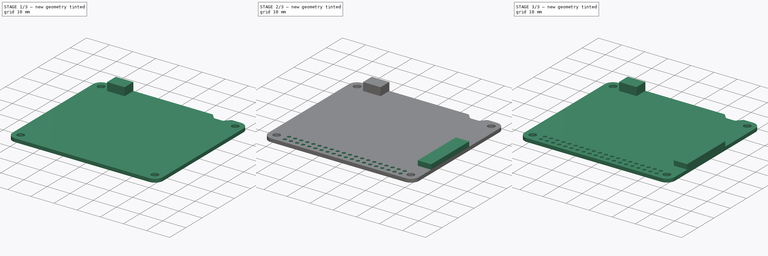
[diagram: build sequence overview — one tinted view per stage of 3, left to right]
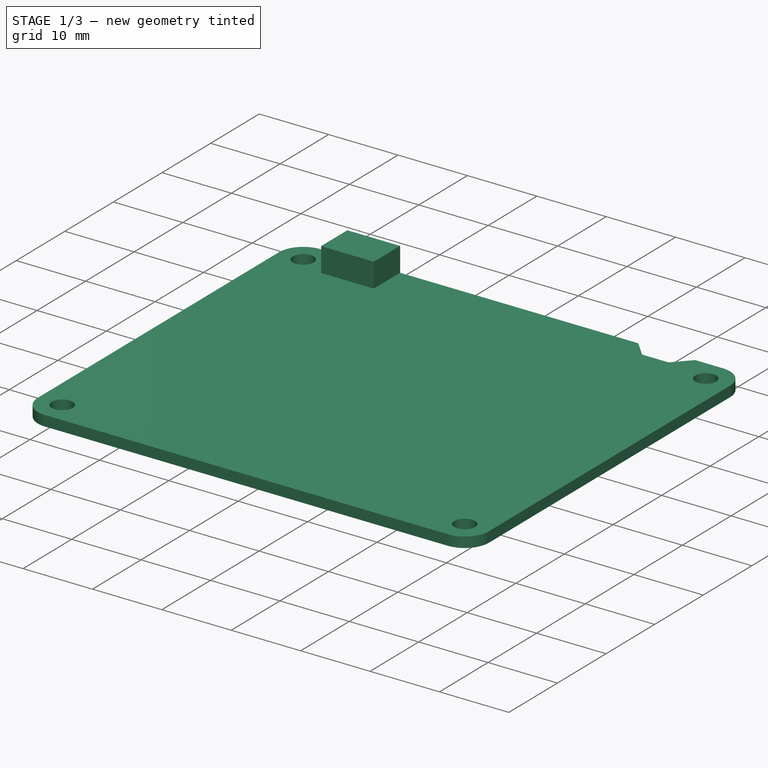
[diagram: stage 1 of 3 — iso view after this stage's code; geometry added in this stage tinted green]
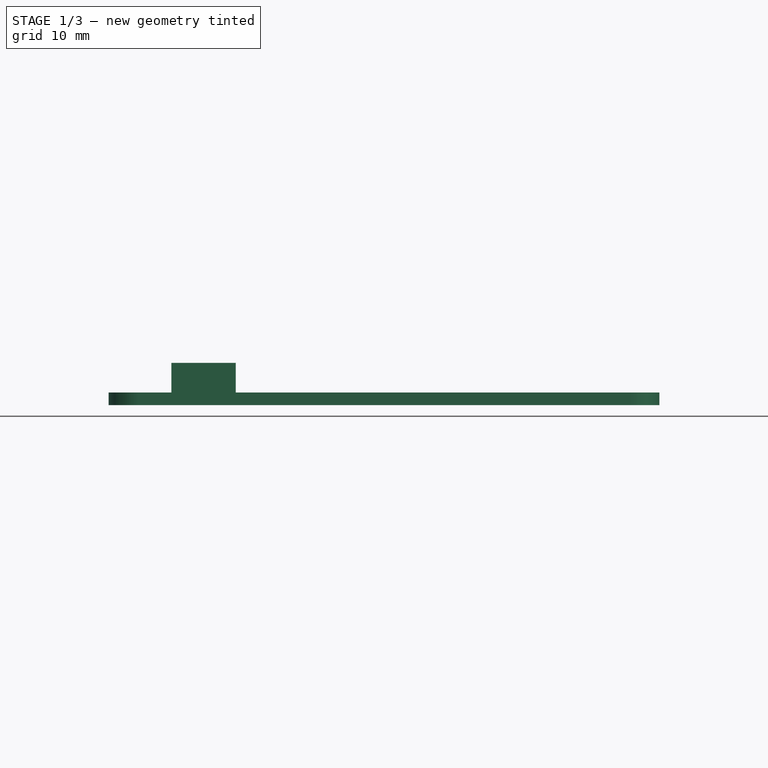
[diagram: stage 1 of 3 — front view after this stage's code; geometry added in this stage tinted green]
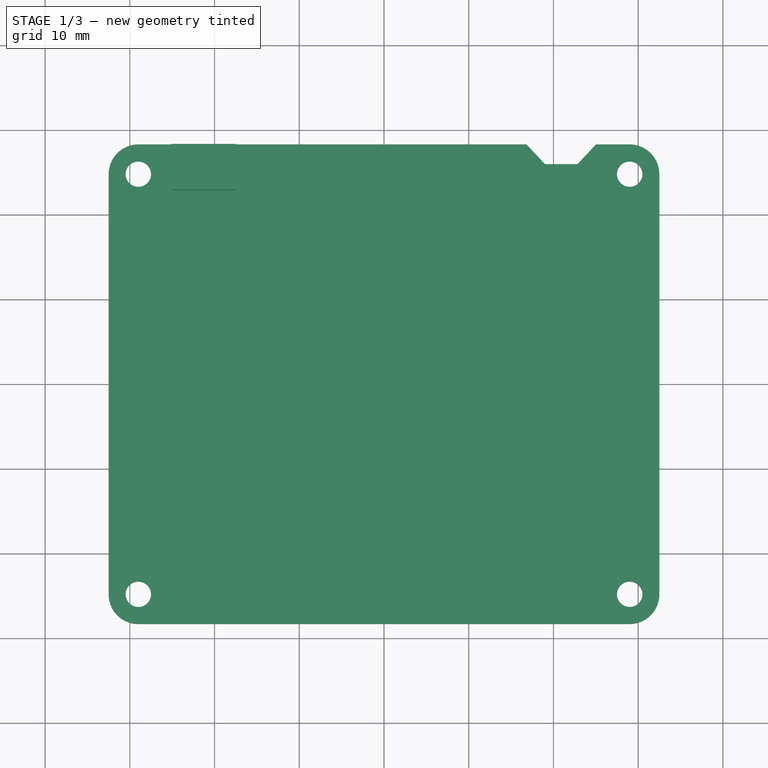
[diagram: stage 1 of 3 — top view after this stage's code; geometry added in this stage tinted green]
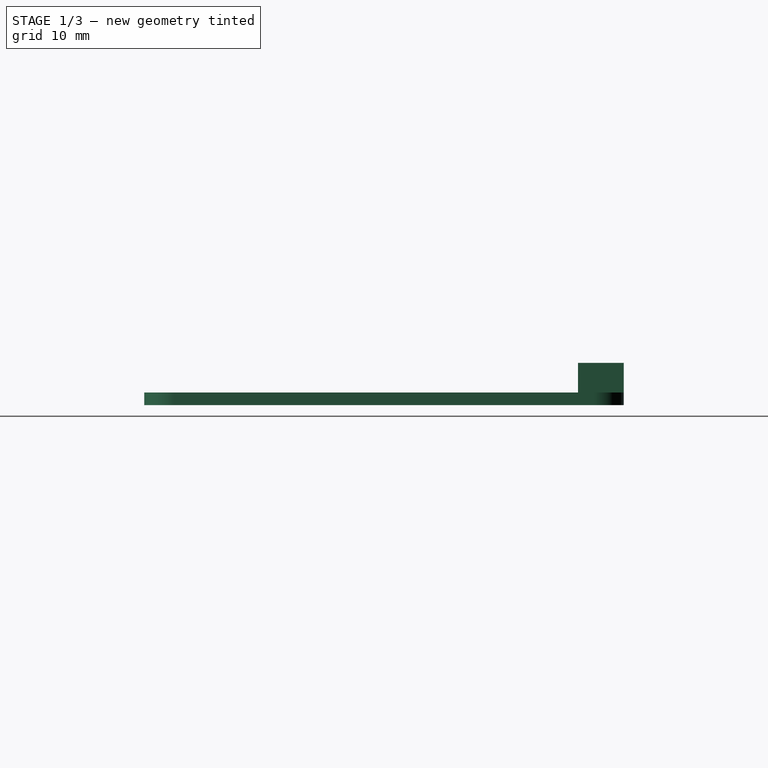
[diagram: stage 1 of 3 — right view after this stage's code; geometry added in this stage tinted green]
FCSTD DOCUMENT  (FreeCAD 0.20R29410 (Git))
Label: IT8951_driver_board
License: All rights reserved
LicenseURL: http://en.wikipedia.org/wiki/All_rights_reserved
objects: Sketcher::SketchObject×5, PartDesign::Pad×4, PartDesign::CoordinateSystem×4, PartDesign::LinearPattern×2, PartDesign::Pocket×1, PartDesign::Body×1
note: 22 computed .brp shape members not serialized (recipe doc carries the construction recipe); baked Part::Feature solids carry a one-line shape summary decoded from their .brp

FEATURE [Sketcher::SketchObject] Sketch
  FullyConstrained = false
  MapMode = 5
  Support = -> [XY_Plane]
  sketch-geometry (19):
    g0: ArcOfCircle CenterX=-29 CenterY=24.8001 CenterZ=0 NormalX=0 NormalY=0 NormalZ=1 AngleXU=0 Radius=3.5 StartAngle=1.5708 EndAngle=3.14159
    g1: LineSegment StartX=-29 StartY=28.3001 StartZ=0 EndX=16.8156 EndY=28.3001 EndZ=0
    g2: ArcOfCircle CenterX=29 CenterY=24.8 CenterZ=0 NormalX=0 NormalY=0 NormalZ=1 AngleXU=0 Radius=3.5 StartAngle=2e-16 EndAngle=1.56424
    g3: LineSegment StartX=32.5 StartY=24.8 StartZ=0 EndX=32.5 EndY=-24.8001 EndZ=0
    g4: ArcOfCircle CenterX=29 CenterY=-24.8001 CenterZ=0 NormalX=0 NormalY=0 NormalZ=1 AngleXU=0 Radius=3.5 StartAngle=4.71239 EndAngle=6.28319
    g5: LineSegment StartX=29 StartY=-28.3001 StartZ=0 EndX=-29 EndY=-28.3001 EndZ=0
    g6: ArcOfCircle CenterX=-29 CenterY=-24.8001 CenterZ=0 NormalX=0 NormalY=0 NormalZ=1 AngleXU=0 Radius=3.5 StartAngle=3.14159 EndAngle=4.71239
    g7: LineSegment StartX=-32.5 StartY=-24.8001 StartZ=0 EndX=-32.5 EndY=24.8001 EndZ=0
    g8: GeomPoint X=-32.5 Y=28.3001 Z=0
    g9: GeomPoint X=32.5 Y=-28.3001 Z=0
    g10: Circle CenterX=-29 CenterY=24.8001 CenterZ=0 NormalX=0 NormalY=0 NormalZ=1 AngleXU=0 Radius=3.2
    g11: Circle CenterX=-29 CenterY=24.8001 CenterZ=0 NormalX=0 NormalY=0 NormalZ=1 AngleXU=0 Radius=1.5
    g12: Circle CenterX=29 CenterY=24.8 CenterZ=0 NormalX=0 NormalY=0 NormalZ=1 AngleXU=0 Radius=1.5
    g13: Circle CenterX=29 CenterY=-24.8001 CenterZ=0 NormalX=0 NormalY=0 NormalZ=1 AngleXU=0 Radius=1.5
    g14: Circle CenterX=-29 CenterY=-24.8001 CenterZ=0 NormalX=0 NormalY=0 NormalZ=1 AngleXU=0 Radius=1.5
    g15: LineSegment StartX=16.8156 StartY=28.3001 StartZ=0 EndX=19.0176 EndY=25.9684 EndZ=0
    g16: LineSegment StartX=19.0176 StartY=25.9684 StartZ=0 EndX=22.821 EndY=25.9684 EndZ=0
    g17: LineSegment StartX=22.821 StartY=25.9684 StartZ=0 EndX=25.0229 EndY=28.3001 EndZ=0
    g18: LineSegment StartX=25.0229 StartY=28.3001 StartZ=0 EndX=29.0229 EndY=28.2999 EndZ=0
  constraints (40):
    c: Tangent(g0,g1) = 1.5708
    c: Coincident(g18,g2) = 1.5708
    c: Tangent(g2,g3) = 1.5708
    c: Tangent(g3,g4) = 1.5708
    c: Tangent(g4,g5) = 1.5708
    c: Tangent(g5,g6) = 1.5708
    c: Tangent(g6,g7) = 1.5708
    c: Tangent(g7,g0) = 1.5708
    c: Horizontal(g1)
    c: Horizontal(g5)
    c: Vertical(g3)
    c: Vertical(g7)
    c: Equal(g0,g2)
    c: Equal(g2,g4)
    c: Equal(g4,g6)
    c: PointOnObject(g8,g1)
    c: PointOnObject(g8,g7)
    c: PointOnObject(g9,g3)
    c: PointOnObject(g9,g5)
    c: Symmetric(g4,g0,g-1)
    c: DistanceX(g0,g2) = 65
    c: DistanceY(g4,g18) = 56.6
    c: Coincident(g10,g0)
    c: Diameter(g10) = 6.4
    c: DistanceY(g0,g0) = 3.5
    c: Coincident(g11,g0)
    c: Coincident(g12,g2)
    c: Coincident(g13,g4)
    c: Coincident(g14,g6)
    c: Equal(g11,g12)
    c: Equal(g11,g13)
    c: Equal(g11,g14)
    c: Diameter(g11) = 3
    c: Coincident(g15,g16)
    c: Horizontal(g16)
    c: Coincident(g16,g17)
    c: Equal(g15,g17)
    c: Coincident(g1,g15)
    c: Coincident(g18,g17)
    c: DistanceX(g18,g18) = 4
FEATURE [PartDesign::Pad] Pad  label="PCB outline"
  Direction = (0,0,1)
  Length = 1.5
  Length2 = 10
  Profile = -> Sketch
  ReferenceAxis = -> Sketch [N_Axis]
  Refine = true
  Type = 0
FEATURE [Sketcher::SketchObject] Sketch001
  ExternalGeometry = -> [Sketch]
  FullyConstrained = true
  MapMode = 5
  Support = -> [XY_Plane]
  sketch-geometry (4):
    g0: LineSegment StartX=-25.1 StartY=28.3001 StartZ=0 EndX=-17.5 EndY=28.3001 EndZ=0
    g1: LineSegment StartX=-17.5 StartY=28.3001 StartZ=0 EndX=-17.5 EndY=22.9001 EndZ=0
    g2: LineSegment StartX=-17.5 StartY=22.9001 StartZ=0 EndX=-25.1 EndY=22.9001 EndZ=0
    g3: LineSegment StartX=-25.1 StartY=22.9001 StartZ=0 EndX=-25.1 EndY=28.3001 EndZ=0
  constraints (12):
    c: Coincident(g0,g1)
    c: Coincident(g1,g2)
    c: Coincident(g2,g3)
    c: Coincident(g3,g0)
    c: Horizontal(g0)
    c: Horizontal(g2)
    c: Vertical(g1)
    c: Vertical(g3)
    c: PointOnObject(g0,g-3)
    c: DistanceX(g0,g0) = 7.6
    c: DistanceY(g1,g1) = 5.4
    c: DistanceX(g-4,g0) = 15
FEATURE [PartDesign::Pad] Pad001  label="USB"
  BaseFeature = -> Pad
  Direction = (0,0,1)
  Length = 5
  Length2 = 10
  Profile = -> Sketch001
  ReferenceAxis = -> Sketch001 [N_Axis]
  Refine = true
  Type = 0
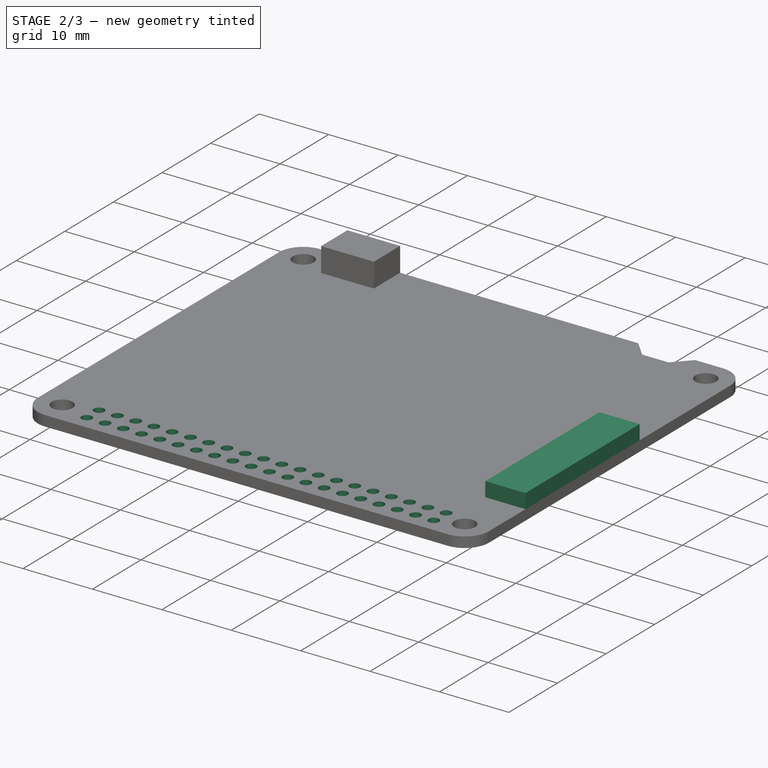
[diagram: stage 2 of 3 — iso view after this stage's code; geometry added in this stage tinted green]
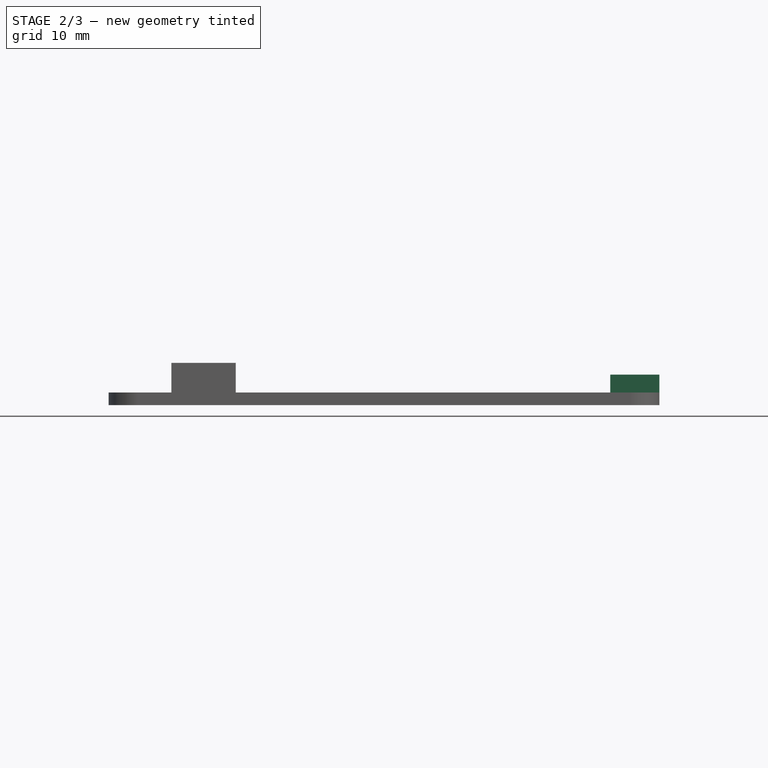
[diagram: stage 2 of 3 — front view after this stage's code; geometry added in this stage tinted green]
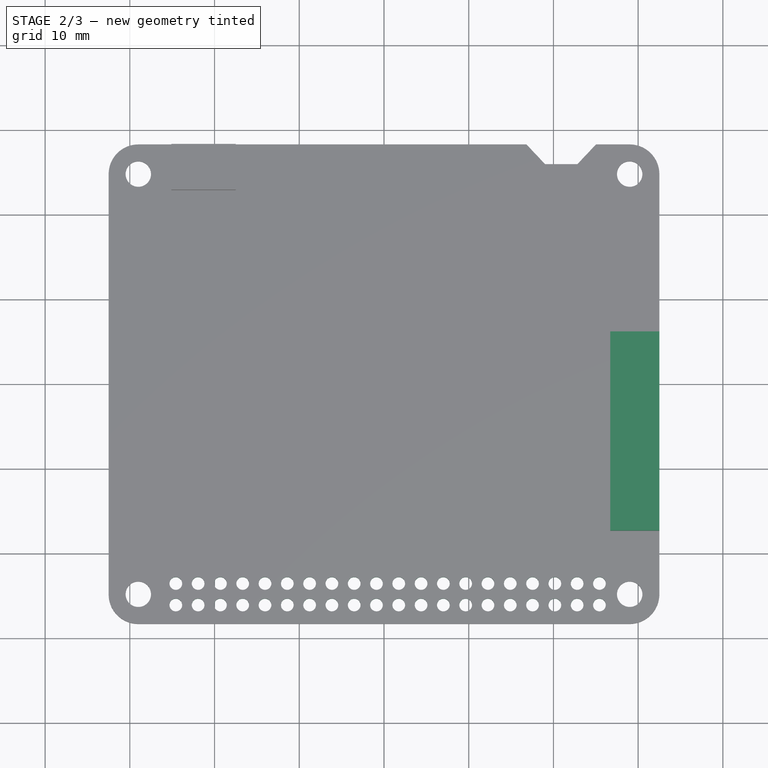
[diagram: stage 2 of 3 — top view after this stage's code; geometry added in this stage tinted green]
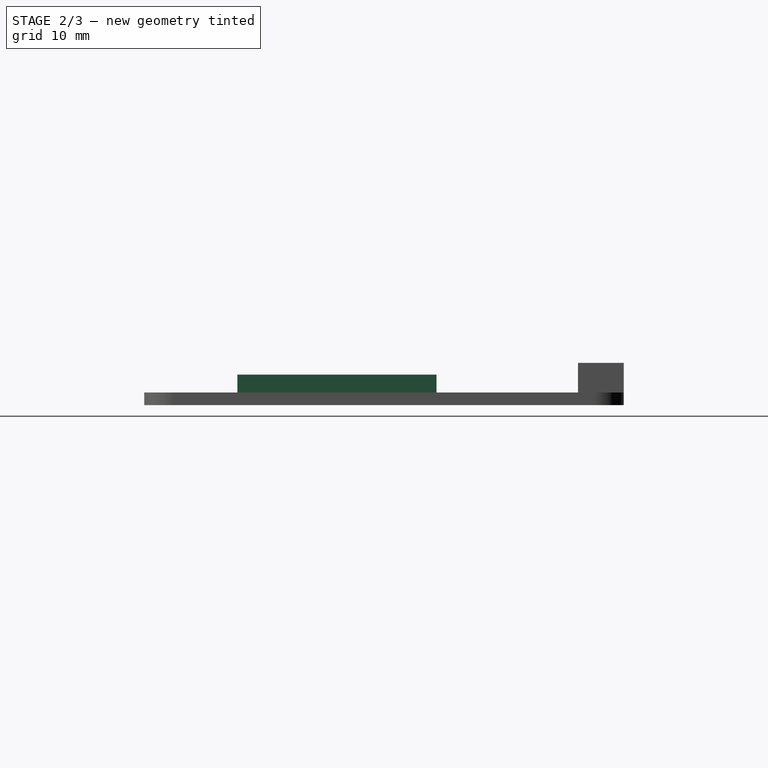
[diagram: stage 2 of 3 — right view after this stage's code; geometry added in this stage tinted green]
FEATURE [Sketcher::SketchObject] Sketch002
  ExternalGeometry = -> [Sketch]
  FullyConstrained = false
  MapMode = 5
  Support = -> [XY_Plane]
  sketch-geometry (6):
    g0: Circle CenterX=-24.5715 CenterY=-23.5301 CenterZ=0 NormalX=0 NormalY=0 NormalZ=1 AngleXU=0 Radius=0.75
    g1: Circle CenterX=-24.5715 CenterY=-26.0701 CenterZ=0 NormalX=0 NormalY=0 NormalZ=1 AngleXU=0 Radius=0.75
    g2: LineSegment StartX=-24.5715 StartY=-26.0701 StartZ=0 EndX=-24.5715 EndY=-23.5301 EndZ=0
    g3: LineSegment StartX=-29 StartY=-24.8001 StartZ=0 EndX=-24.5715 EndY=-23.5301 EndZ=0
    g4: LineSegment StartX=-24.5715 StartY=-26.0701 StartZ=0 EndX=-29 EndY=-24.8001 EndZ=0
    g5: Circle CenterX=-29 CenterY=-24.8001 CenterZ=0 NormalX=0 NormalY=0 NormalZ=1 AngleXU=0 Radius=3.2
  constraints (13):
    c: Coincident(g2,g1)
    c: Coincident(g2,g0)
    c: Vertical(g2)
    c: DistanceY(g2,g2) = 2.54
    c: Equal(g0,g1)
    c: Diameter(g0) = 1.5
    c: Coincident(g3,g-3)
    c: Coincident(g3,g0)
    c: Coincident(g4,g1)
    c: Coincident(g4,g3)
    c: Equal(g4,g3)
    c: Coincident(g5,g3)
    c: Diameter(g5) = 6.4
FEATURE [PartDesign::Pocket] Pocket  label="headerpins"
  BaseFeature = -> Pad001
  Direction = (0,0,-1)
  Length = 5
  Length2 = 5
  Profile = -> Sketch002
  ReferenceAxis = -> Sketch002 [N_Axis]
  Refine = true
  Reversed = true
  Type = 0
FEATURE [PartDesign::LinearPattern] LinearPattern
  BaseFeature = -> Pocket
  Direction = -> Sketch002 [H_Axis]
  Length = 50
  Occurrences = 20
  Originals = -> [Pocket]
  Refine = true
FEATURE [Sketcher::SketchObject] Sketch003
  ExternalGeometry = -> [Sketch]
  FullyConstrained = true
  MapMode = 5
  Support = -> [XY_Plane]
  sketch-geometry (4):
    g0: LineSegment StartX=32.5 StartY=6.19992 StartZ=0 EndX=26.7 EndY=6.19992 EndZ=0
    g1: LineSegment StartX=26.7 StartY=6.19992 StartZ=0 EndX=26.7 EndY=-17.3001 EndZ=0
    g2: LineSegment StartX=26.7 StartY=-17.3001 StartZ=0 EndX=32.5 EndY=-17.3001 EndZ=0
    g3: LineSegment StartX=32.5 StartY=-17.3001 StartZ=0 EndX=32.5 EndY=6.19992 EndZ=0
  constraints (12):
    c: Coincident(g0,g1)
    c: Coincident(g1,g2)
    c: Coincident(g2,g3)
    c: Coincident(g3,g0)
    c: Horizontal(g0)
    c: Horizontal(g2)
    c: Vertical(g1)
    c: Vertical(g3)
    c: DistanceX(g2,g2) = 5.8
    c: PointOnObject(g2,g-4)
    c: DistanceY(g-3,g0) = 34.5
    c: DistanceY(g3,g3) = 23.5
FEATURE [PartDesign::Pad] Pad002  label="E-ink-ribbon-cable"
  BaseFeature = -> LinearPattern
  Direction = (0,0,1)
  Length = 3.6
  Length2 = 10
  Profile = -> Sketch003
  ReferenceAxis = -> Sketch003 [N_Axis]
  Refine = true
  Type = 0
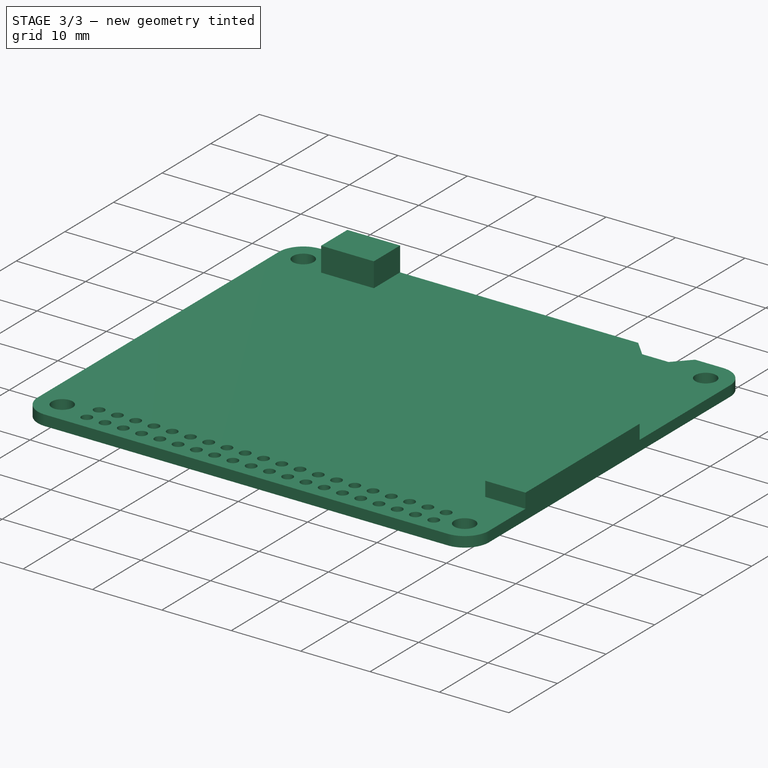
[diagram: stage 3 of 3 — iso view after this stage's code; geometry added in this stage tinted green]
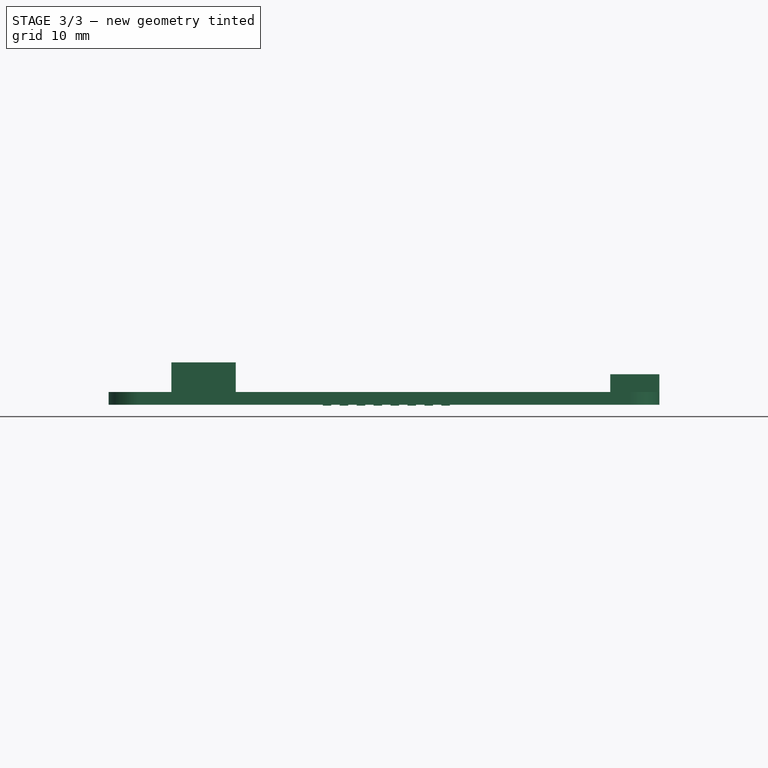
[diagram: stage 3 of 3 — front view after this stage's code; geometry added in this stage tinted green]
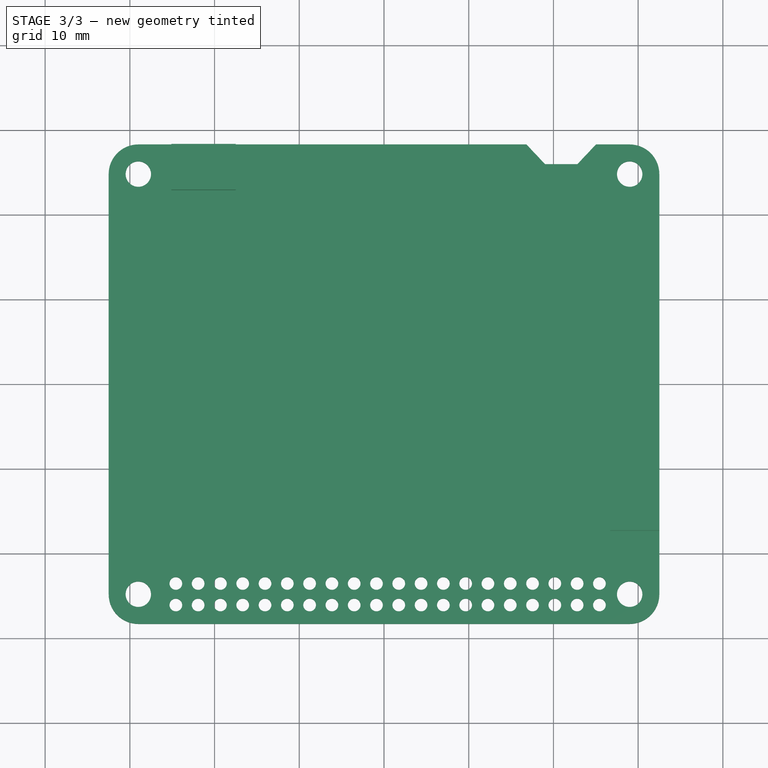
[diagram: stage 3 of 3 — top view after this stage's code; geometry added in this stage tinted green]
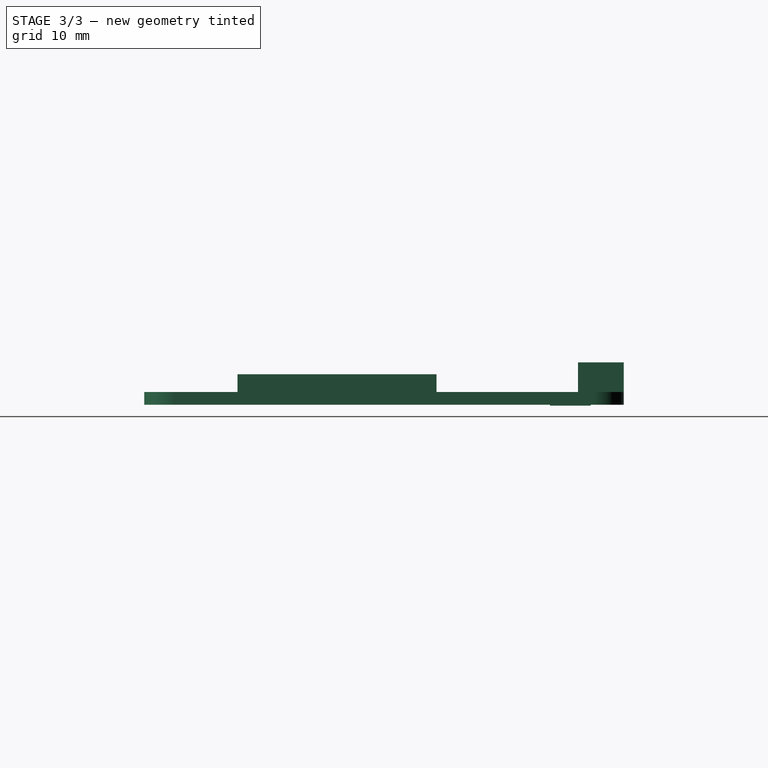
[diagram: stage 3 of 3 — right view after this stage's code; geometry added in this stage tinted green]
FEATURE [Sketcher::SketchObject] Sketch004
  ExternalGeometry = -> [Sketch]
  FullyConstrained = false
  MapMode = 5
  Placement = pos=(0,0,0) rot=(1,0,0;3.14159rad)
  Support = -> [Pad002]
  sketch-geometry (5):
    g0: LineSegment StartX=-7.22 StartY=-19.6001 StartZ=0 EndX=-6.22 EndY=-19.6001 EndZ=0
    g1: LineSegment StartX=-6.22 StartY=-19.6001 StartZ=0 EndX=-6.22 EndY=-24.4034 EndZ=0
    g2: LineSegment StartX=-6.22 StartY=-24.4034 StartZ=0 EndX=-7.22 EndY=-24.4034 EndZ=0
    g3: LineSegment StartX=-7.22 StartY=-24.4034 StartZ=0 EndX=-7.22 EndY=-19.6001 EndZ=0
    g4: LineSegment StartX=-6.72 StartY=-20.0661 StartZ=0 EndX=-6.72 EndY=-26.6569 EndZ=0
  constraints (12):
    c: Coincident(g0,g1)
    c: Coincident(g1,g2)
    c: Coincident(g2,g3)
    c: Coincident(g3,g0)
    c: Horizontal(g0)
    c: Horizontal(g2)
    c: Vertical(g1)
    c: Vertical(g3)
    c: DistanceX(g0,g0) = 1
    c: Symmetric(g0,g0,g4)
    c: DistanceX(g4,g-3) = 39.22
    c: DistanceY(g-4,g0) = 8.7
FEATURE [PartDesign::Pad] Pad003  label="solderpads"
  BaseFeature = -> Pad002
  Direction = (0,0,-1)
  Length = 0.1
  Length2 = 10
  Profile = -> Sketch004
  ReferenceAxis = -> Sketch004 [N_Axis]
  Refine = true
  Type = 0
FEATURE [PartDesign::LinearPattern] LinearPattern001  label="solderpads001"
  BaseFeature = -> Pad003
  Direction = -> Sketch004 [H_Axis]
  Length = 14
  Occurrences = 8
  Originals = -> [Pad003]
  Refine = true
FEATURE [PartDesign::CoordinateSystem] mounting_point_A  label="mounting-point-A"
  AttacherType = Attacher::AttachEngine3D
  MapMode = 11
  Placement = pos=(-29,24.8001,0) rot=(0,0,1;1.5708rad)
  Support = -> [LinearPattern001]
FEATURE [PartDesign::CoordinateSystem] mounting_point_B  label="mounting-point-B"
  AttacherType = Attacher::AttachEngine3D
  MapMode = 12
  Placement = pos=(29,24.8,0) rot=(1,0,0;1.5708rad)
  Support = -> [LinearPattern001]
FEATURE [PartDesign::CoordinateSystem] mounting_point_C  label="mounting-point-C"
  AttacherType = Attacher::AttachEngine3D
  MapMode = 11
  Placement = pos=(-29,-24.8001,0) rot=(0,0,1;1.5708rad)
  Support = -> [LinearPattern001]
FEATURE [PartDesign::CoordinateSystem] mounting_point_D  label="mounting-point-D"
  AttacherType = Attacher::AttachEngine3D
  MapMode = 11
  Placement = pos=(29,-24.8001,0) rot=(0,0,1;1.5708rad)
  Support = -> [LinearPattern001]
FEATURE [PartDesign::Body] Body  label="IT8951-board"
  Group = -> [Sketch,Pad,Sketch001,Pad001,Sketch002,Pocket,LinearPattern,Sketch003,Pad002,Sketch004,Pad003,LinearPattern001,mounting_point_A,mounting_point_B,mounting_point_C,mounting_point_D]
  Origin = -> Origin
  Tip = -> LinearPattern001
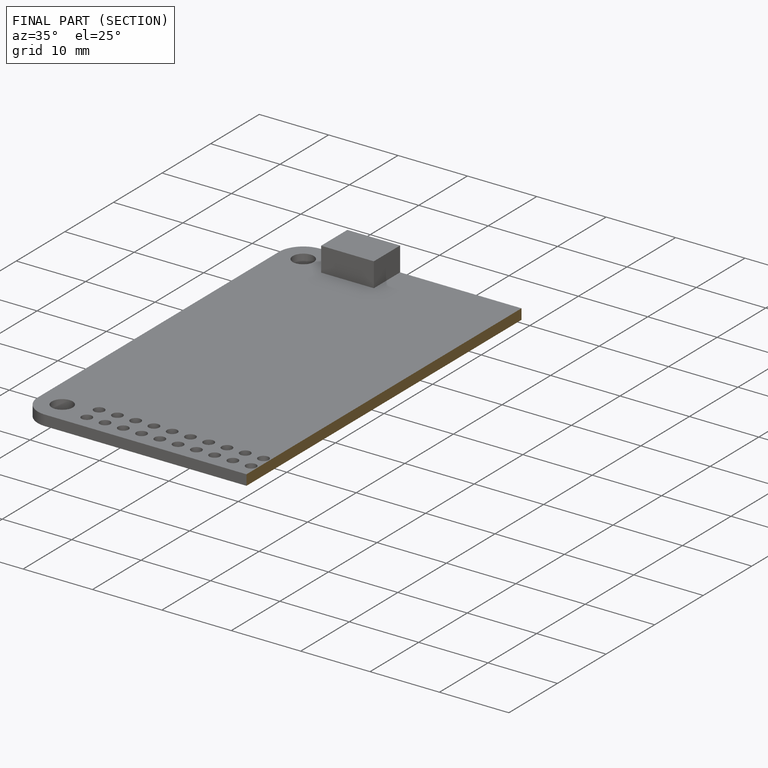
[diagram: finished part — half-section view (interior)]
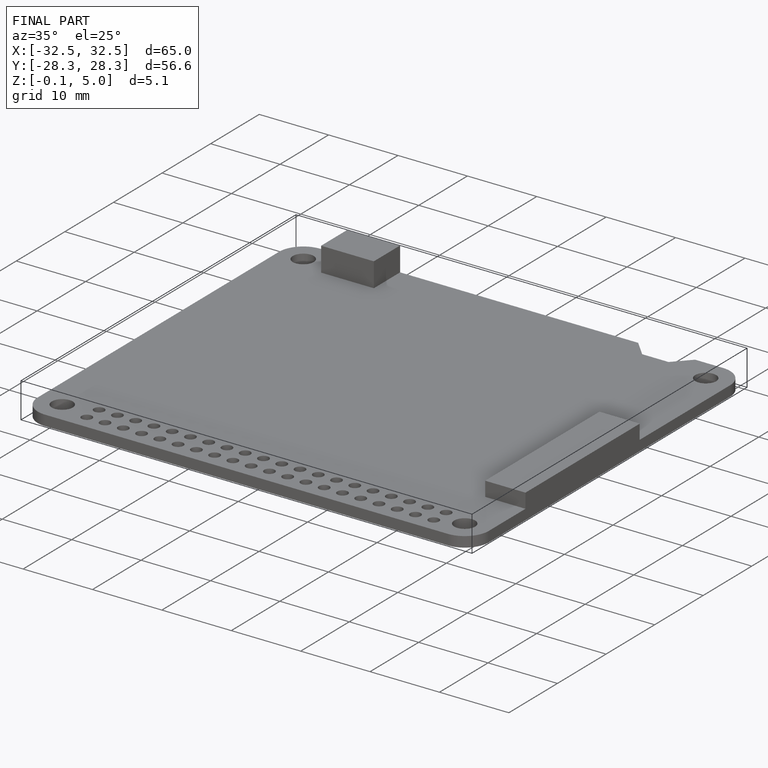
[diagram: finished part — iso view with bounding-box wireframe]
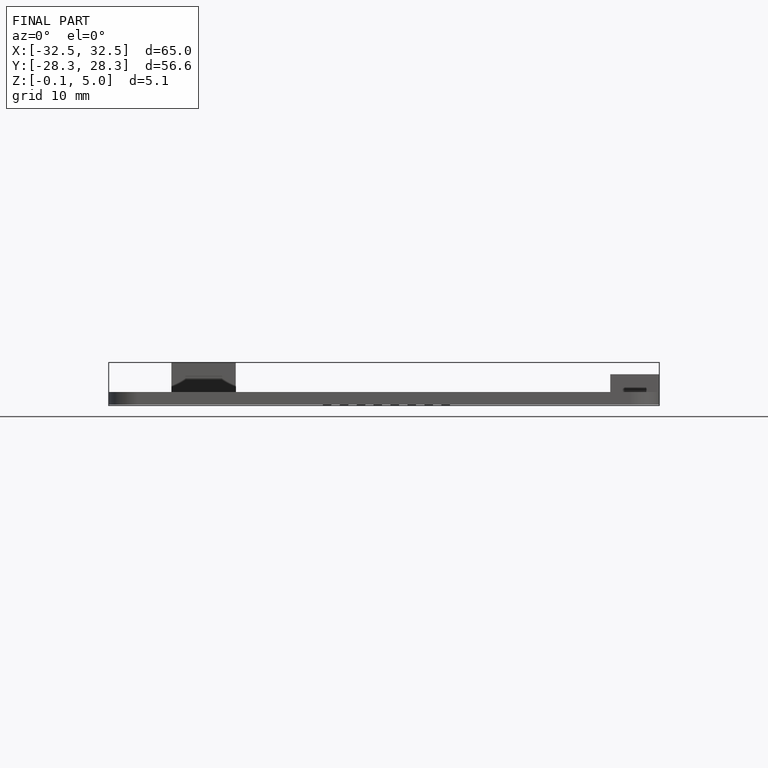
[diagram: finished part — front view with bounding-box wireframe]
